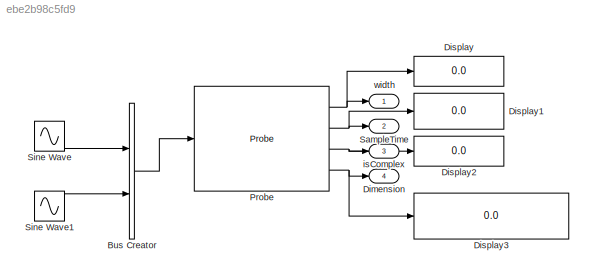
MODEL slx_ebe2b98c5fd9
KIND model
CONFIG AbsTol = auto
CONFIG EnableMultiTasking = on
CONFIG FixedStep = 0.200000
CONFIG MaxStep = auto
CONFIG MinStep = auto
CONFIG RelTol = 1e-3
CONFIG SampleTimeConstraint = Unconstrained
CONFIG Solver = FixedStepDiscrete
CONFIG SolverName = FixedStepDiscrete
CONFIG StartTime = 0.0
CONFIG StopTime = 19.8
BLOCK [BusCreator] Bus Creator
  DisplayOption = bar
  InheritFromInputs = on
  Inputs = 2
  Ports = [2, 1]
BLOCK [Outport] Dimension
  IconDisplay = Port number
  Port = 4
BLOCK [Display] Display
  Decimation = 1
  Ports = [1]
BLOCK [Display] Display1
  Decimation = 1
  Ports = [1]
BLOCK [Display] Display2
  Decimation = 1
  Ports = [1]
BLOCK [Display] Display3
  Decimation = 1
  Ports = [1]
BLOCK [Probe] Probe
  Ports = [1, 4]
  ProbeComplexityDataType = boolean
  ProbeDimensionsDataType = uint8
  ProbeSignalDimensions = on
  ProbeWidthDataType = uint8
BLOCK [Outport] SampleTime
  IconDisplay = Port number
  Port = 2
BLOCK [Sin] Sine Wave
  Ports = [0, 1]
  SampleTime = 0
BLOCK [Sin] Sine Wave1
  Ports = [0, 1]
  SampleTime = 0
BLOCK [Outport] isComplex
  IconDisplay = Port number
  Port = 3
BLOCK [Outport] width
  IconDisplay = Port number
LINE Bus Creator:1 -> Probe:1
NET Probe:1 -> Display:1, width:1
NET Probe:2 -> Display1:1, SampleTime:1
NET Probe:3 -> Display2:1, isComplex:1
NET Probe:4 -> Dimension:1, Display3:1
LINE Sine Wave1:1 -> Bus Creator:2
LINE Sine Wave:1 -> Bus Creator:1
note: NET lines group one-source signal fan-out (src -> all destinations, sorted); 1:1 wires keep LINE
